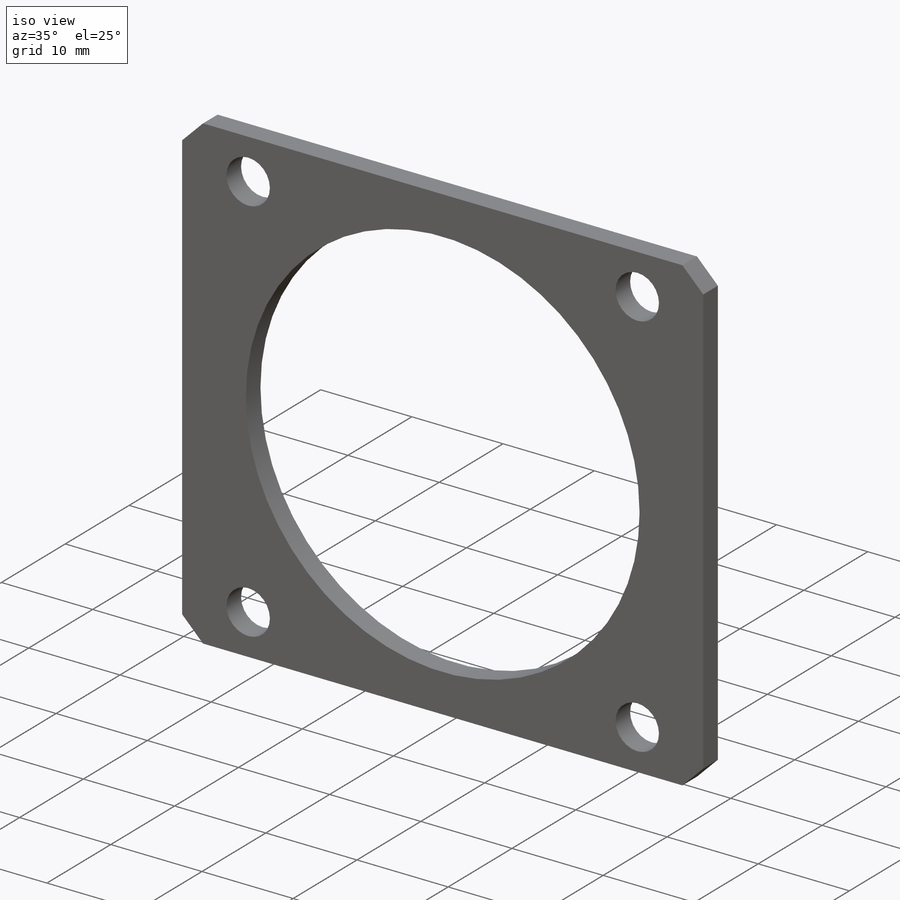
[diagram: iso view]
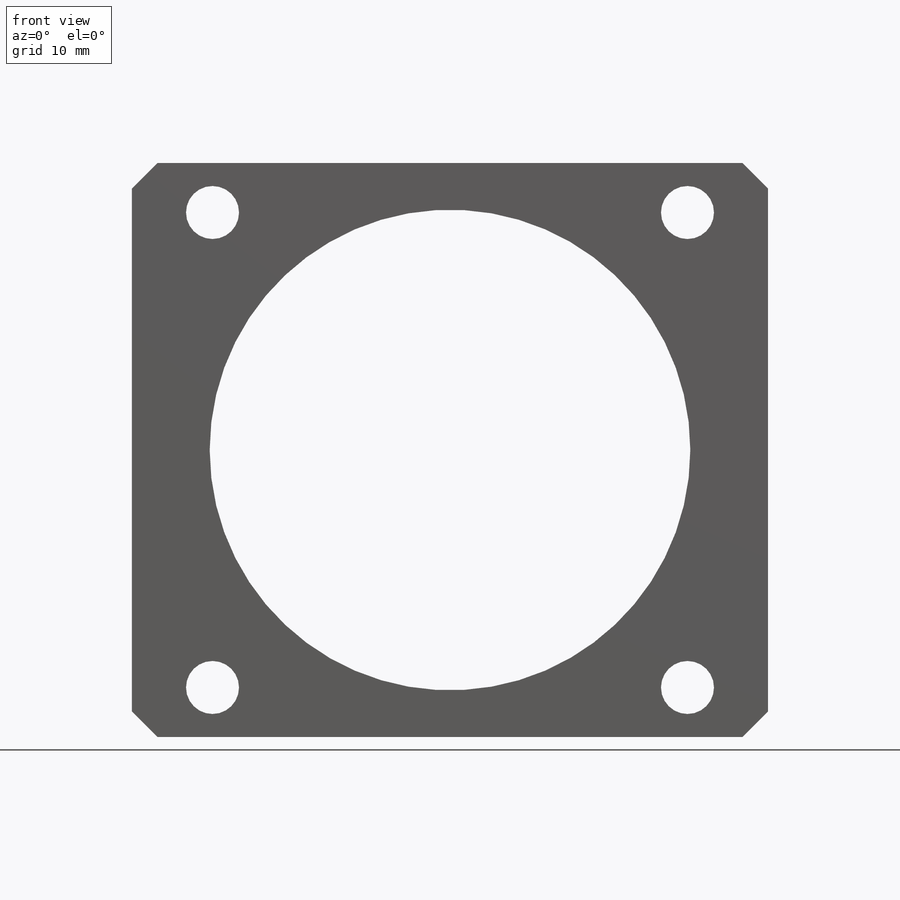
[diagram: front view]
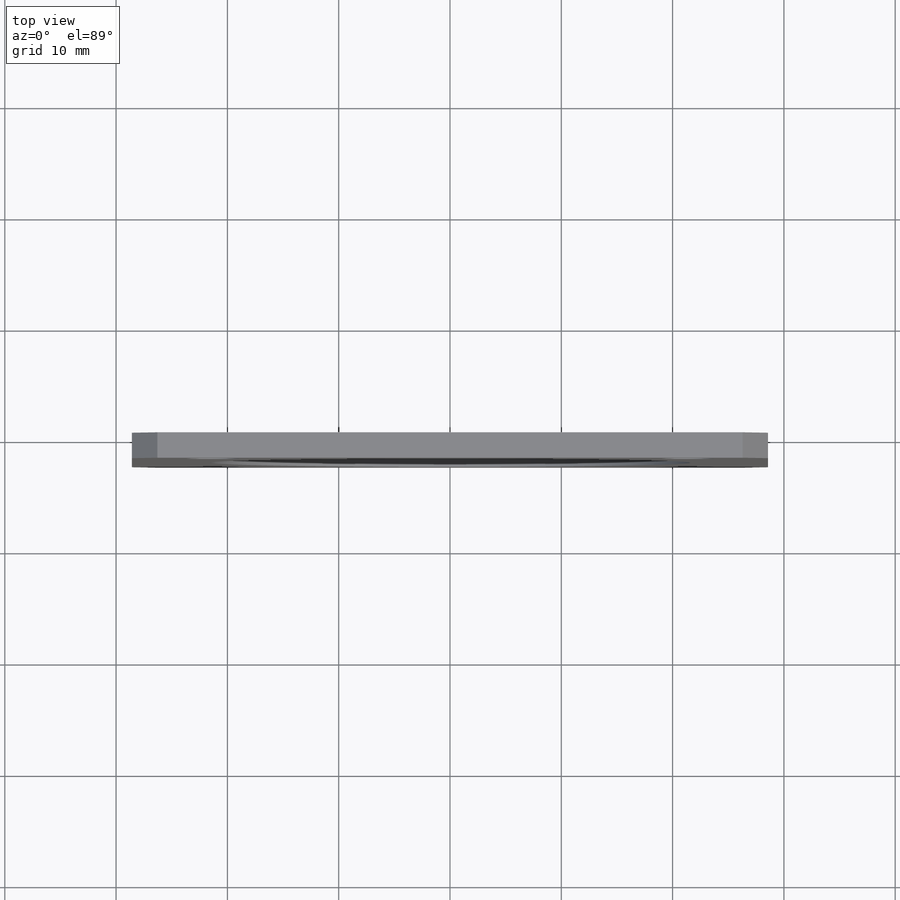
[diagram: top view]
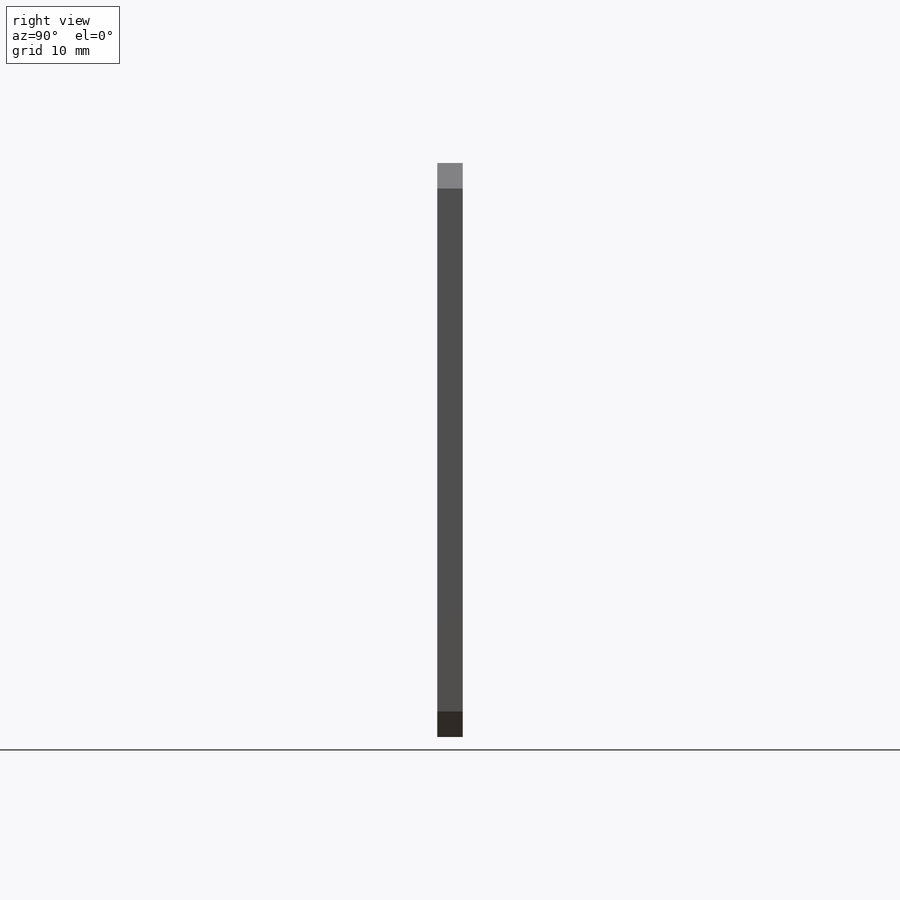
[diagram: right view]
SOLIDWORKS PART (.sldprt)
format: sldprt  version: not decoded by parser v0  size: 200,192 bytes
history: native  units: mm
features: sketch x3, material x1, extrude x1, hole x1, chamfer x1 + 1 further entry (+13 scaffold rows collapsed)
feature tree (21):
  scaffold x13  (default folders/planes/origin — collapsed)
  material  "304 SSTL"
  "Origin"  ID=-1
  sketch  "Sketch1"  dims[D2=43.18mm D1=57.15mm D3=51.562mm]
  extrude  "Boss-Extrude1"  Depth=2.286mm
  hole  "3/16 (0.1875) Diameter Hole1"  Diameter=4.7625mm Depth=2.286mm
  sketch  "Sketch3"  dims[D1=42.672mm]
  sketch  "Sketch2"  dims[hole-wizard template sketch: 60 standard entries collapsed; hole parameters kept: c18.Thru Hole Depth=2.286mm]
  chamfer  "Chamfer1"  Distance=2.286mm Angle=45deg
decode coverage: 6 of 6 modeling features carry decoded parameters; 1 rows unclassified (native names shown)
note: ~ marks probable driven/reference dimensions
note: suppression state not decoded; provenance and decode notes live in map.json
